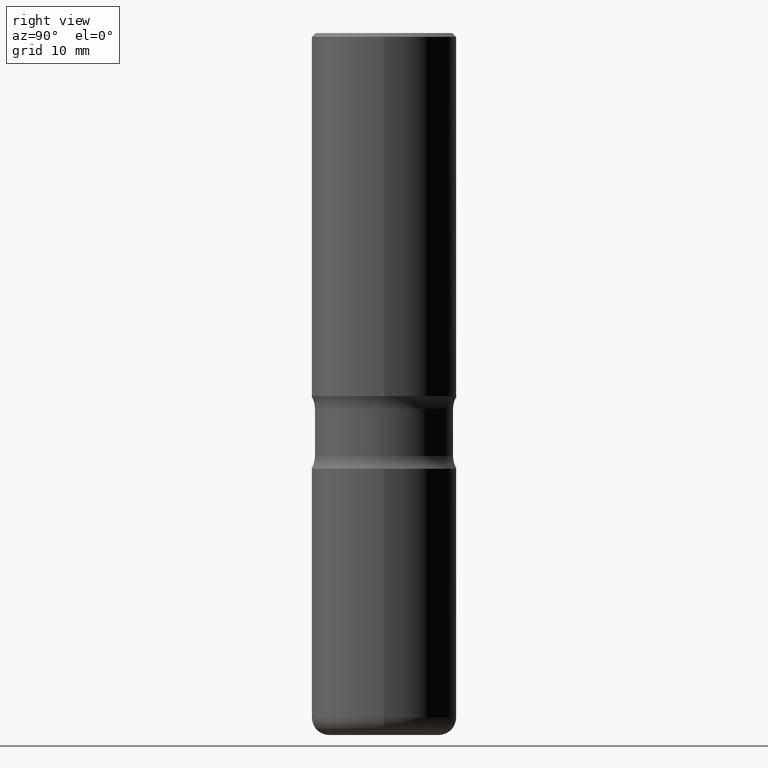
[diagram: clean part render]
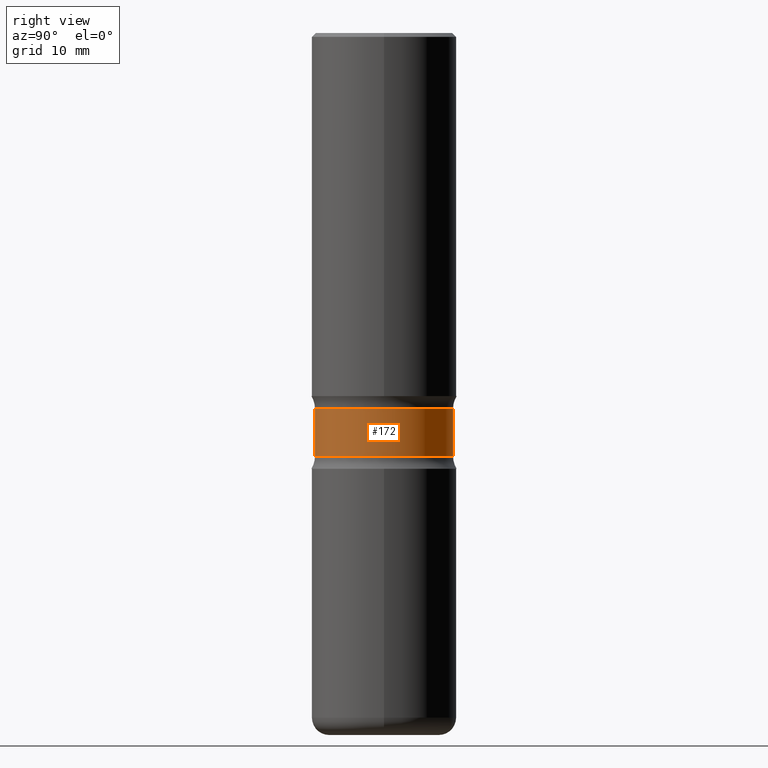
[diagram: same view with one face highlighted and labeled with its STEP entity id]
A machine part, right view. The second image highlights one B-rep face of the part: STEP entity #172.
In plain terms, the highlighted cylindrical surface (partial cylindrical patch) has radius 9.0551 mm, axis along (0, -0, -1).
Its self-contained STEP definition (entity closure, byte-faithful):
#6 = ORIENTED_EDGE ( 'NONE', *, *, #20, .T. ) ;
#9 = LINE ( 'NONE', #526, #460 ) ;
#13 = CARTESIAN_POINT ( 'NONE',  ( 2.489426194595200956E-15, 0.3564999999999931557, -1.940442723048482199 ) ) ;
#20 = EDGE_CURVE ( 'NONE', #190, #343, #378, .T. ) ;
#30 = DIRECTION ( 'NONE',  ( 6.982962677686265922E-15, 1.000000000000000000, -3.831483862081716154E-15 ) ) ;
#50 = DIRECTION ( 'NONE',  ( 2.412880205859895394E-29, -3.538150069336831953E-15, -1.000000000000000000 ) ) ;
#56 = DIRECTION ( 'NONE',  ( 2.412880205859895114E-29, -3.538150069336831953E-15, -1.000000000000000000 ) ) ;
#58 = CARTESIAN_POINT ( 'NONE',  ( -2.509227142684884613E-15, -0.3565000000000076441, -2.184557276951519356 ) ) ;
#59 = VERTEX_POINT ( 'NONE', #13 ) ;
#84 = CYLINDRICAL_SURFACE ( 'NONE', #154, 0.3564999999999999836 ) ;
#90 = CARTESIAN_POINT ( 'NONE',  ( -2.445767536205462640E-15, -0.3565000000000126956, -3.624999999999999556 ) ) ;
#96 = CIRCLE ( 'NONE', #425, 0.3564999999999999836 ) ;
#108 = ORIENTED_EDGE ( 'NONE', *, *, #368, .F. ) ;
#126 = CIRCLE ( 'NONE', #278, 0.3564999999999999281 ) ;
#134 = CARTESIAN_POINT ( 'NONE',  ( 5.344399362855309954E-29, -7.624286837305509561E-15, -2.184557276951520688 ) ) ;
#154 = AXIS2_PLACEMENT_3D ( 'NONE', #503, #293, #239 ) ;
#172 = ADVANCED_FACE ( 'NONE', ( #337 ), #84, .T. ) ;
#190 = VERTEX_POINT ( 'NONE', #335 ) ;
#207 = DIRECTION ( 'NONE',  ( 6.982962677686266711E-15, 1.000000000000000000, -3.831483862081716154E-15 ) ) ;
#229 = EDGE_CURVE ( 'NONE', #59, #190, #126, .T. ) ;
#239 = DIRECTION ( 'NONE',  ( 6.982962677686266711E-15, 1.000000000000000000, -3.065187089665372450E-15 ) ) ;
#250 = ORIENTED_EDGE ( 'NONE', *, *, #341, .F. ) ;
#260 = DIRECTION ( 'NONE',  ( 2.412880205859895114E-29, -3.538150069336831953E-15, -1.000000000000000000 ) ) ;
#278 = AXIS2_PLACEMENT_3D ( 'NONE', #469, #420, #30 ) ;
#293 = DIRECTION ( 'NONE',  ( 2.412880205859895394E-29, -3.538150069336831953E-15, -1.000000000000000000 ) ) ;
#335 = CARTESIAN_POINT ( 'NONE',  ( -2.509227142684891319E-15, -0.3565000000000067004, -1.940442723048479534 ) ) ;
#337 = FACE_OUTER_BOUND ( 'NONE', #531, .T. ) ;
#341 = EDGE_CURVE ( 'NONE', #426, #343, #96, .T. ) ;
#343 = VERTEX_POINT ( 'NONE', #58 ) ;
#368 = EDGE_CURVE ( 'NONE', #59, #426, #9, .T. ) ;
#378 = LINE ( 'NONE', #90, #524 ) ;
#420 = DIRECTION ( 'NONE',  ( 2.412880205859895394E-29, -3.538150069336831953E-15, -1.000000000000000000 ) ) ;
#425 = AXIS2_PLACEMENT_3D ( 'NONE', #134, #50, #207 ) ;
#426 = VERTEX_POINT ( 'NONE', #435 ) ;
#435 = CARTESIAN_POINT ( 'NONE',  ( 2.489426194595207267E-15, 0.3564999999999923785, -2.184557276951522020 ) ) ;
#458 = ORIENTED_EDGE ( 'NONE', *, *, #229, .T. ) ;
#460 = VECTOR ( 'NONE', #260, 39.37007874015748143 ) ;
#469 = CARTESIAN_POINT ( 'NONE',  ( 4.755380187780347497E-29, -6.760572911487338460E-15, -1.940442723048480866 ) ) ;
#503 = CARTESIAN_POINT ( 'NONE',  ( 8.820015096973915297E-29, -1.272078935773522598E-14, -3.625000000000000888 ) ) ;
#524 = VECTOR ( 'NONE', #56, 39.37007874015748143 ) ;
#526 = CARTESIAN_POINT ( 'NONE',  ( 2.489426194595242372E-15, 0.3564999999999873270, -3.625000000000001776 ) ) ;
#531 = EDGE_LOOP ( 'NONE', ( #458, #6, #250, #108 ) ) ;